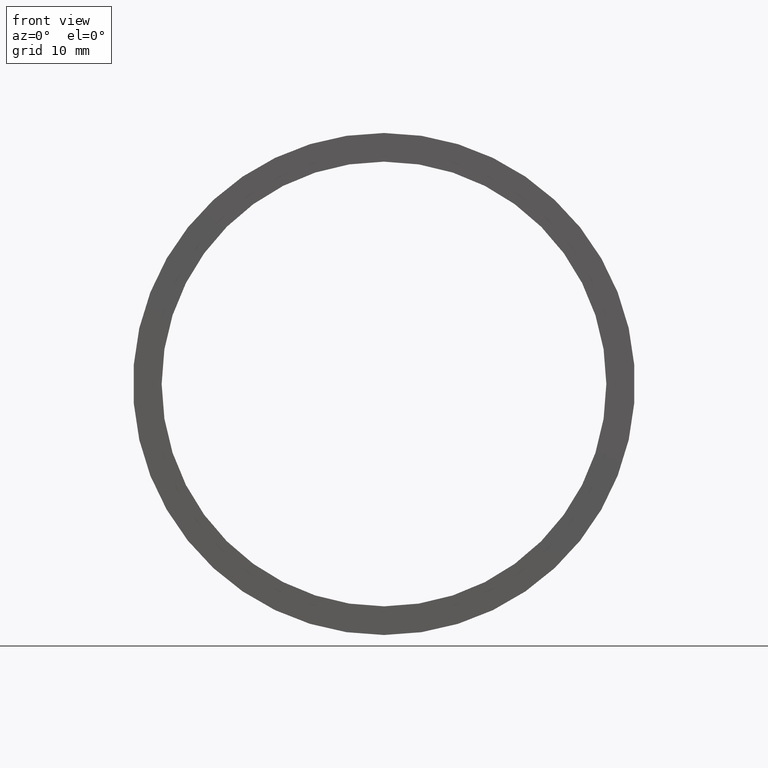
[diagram: clean part render]
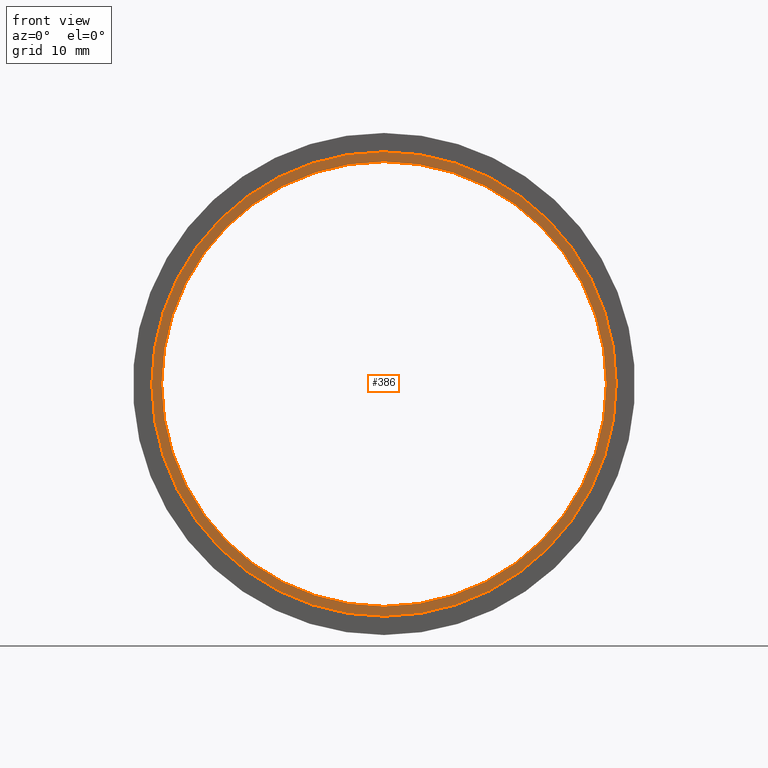
[diagram: same view with one face highlighted and labeled with its STEP entity id]
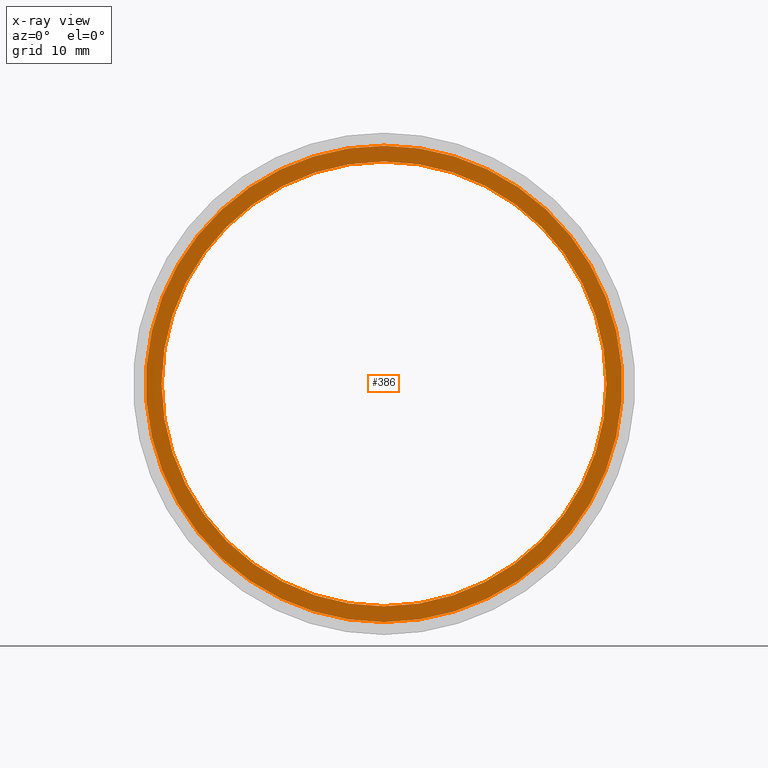
[diagram: x-ray of the same camera — body ghosted, the highlighted face saturated]
A machine part, front view. The second image highlights one B-rep face of the part: STEP entity #386.
The next image is the same camera in x-ray: the body ghosted, the highlighted face saturated — about 0% of this face is hidden behind the body in this view.
In plain terms, the highlighted planar face has unit normal (-0, 1, 0).
Its self-contained STEP definition (entity closure, byte-faithful):
#7 = DIRECTION ( 'NONE',  ( 0.0000000000000000000, 0.0000000000000000000, 1.000000000000000000 ) ) ;
#27 = DIRECTION ( 'NONE',  ( -0.0000000000000000000, 1.000000000000000000, 0.0000000000000000000 ) ) ;
#45 = EDGE_CURVE ( 'NONE', #153, #569, #543, .T. ) ;
#48 = EDGE_LOOP ( 'NONE', ( #181, #96 ) ) ;
#50 = AXIS2_PLACEMENT_3D ( 'NONE', #325, #27, #369 ) ;
#79 = ORIENTED_EDGE ( 'NONE', *, *, #45, .T. ) ;
#85 = CARTESIAN_POINT ( 'NONE',  ( 0.0000000000000000000, 5.499999999999976900, 0.0000000000000000000 ) ) ;
#92 = CIRCLE ( 'NONE', #158, 22.50000000000001800 ) ;
#96 = ORIENTED_EDGE ( 'NONE', *, *, #304, .F. ) ;
#138 = DIRECTION ( 'NONE',  ( 0.0000000000000000000, 0.0000000000000000000, 1.000000000000000000 ) ) ;
#153 = VERTEX_POINT ( 'NONE', #550 ) ;
#158 = AXIS2_PLACEMENT_3D ( 'NONE', #177, #561, #551 ) ;
#166 = CARTESIAN_POINT ( 'NONE',  ( 0.0000000000000000000, 5.499999999999976900, 22.50000000000001800 ) ) ;
#177 = CARTESIAN_POINT ( 'NONE',  ( 0.0000000000000000000, 5.499999999999976900, 0.0000000000000000000 ) ) ;
#181 = ORIENTED_EDGE ( 'NONE', *, *, #557, .F. ) ;
#188 = VERTEX_POINT ( 'NONE', #464 ) ;
#203 = ORIENTED_EDGE ( 'NONE', *, *, #244, .T. ) ;
#218 = AXIS2_PLACEMENT_3D ( 'NONE', #85, #431, #138 ) ;
#231 = CARTESIAN_POINT ( 'NONE',  ( 0.0000000000000000000, 5.499999999999976900, 24.10000000000001900 ) ) ;
#244 = EDGE_CURVE ( 'NONE', #569, #153, #92, .T. ) ;
#297 = CIRCLE ( 'NONE', #584, 24.10000000000001900 ) ;
#304 = EDGE_CURVE ( 'NONE', #188, #606, #406, .T. ) ;
#321 = PLANE ( 'NONE',  #50 ) ;
#325 = CARTESIAN_POINT ( 'NONE',  ( 22.50000000000001800, 5.499999999999984900, 0.0000000000000000000 ) ) ;
#334 = EDGE_LOOP ( 'NONE', ( #203, #79 ) ) ;
#369 = DIRECTION ( 'NONE',  ( 0.0000000000000000000, 0.0000000000000000000, 1.000000000000000000 ) ) ;
#386 = ADVANCED_FACE ( 'NONE', ( #445, #443 ), #321, .F. ) ;
#400 = CARTESIAN_POINT ( 'NONE',  ( 0.0000000000000000000, 5.499999999999976900, 0.0000000000000000000 ) ) ;
#406 = CIRCLE ( 'NONE', #218, 24.10000000000001900 ) ;
#409 = DIRECTION ( 'NONE',  ( 0.0000000000000000000, 0.0000000000000000000, 1.000000000000000000 ) ) ;
#431 = DIRECTION ( 'NONE',  ( -0.0000000000000000000, 1.000000000000000000, -0.0000000000000000000 ) ) ;
#443 = FACE_BOUND ( 'NONE', #334, .T. ) ;
#445 = FACE_OUTER_BOUND ( 'NONE', #48, .T. ) ;
#464 = CARTESIAN_POINT ( 'NONE',  ( 2.951398785945123600E-015, 5.499999999999976900, -24.10000000000001900 ) ) ;
#492 = DIRECTION ( 'NONE',  ( -0.0000000000000000000, 1.000000000000000000, -0.0000000000000000000 ) ) ;
#499 = DIRECTION ( 'NONE',  ( -0.0000000000000000000, 1.000000000000000000, -0.0000000000000000000 ) ) ;
#543 = CIRCLE ( 'NONE', #617, 22.50000000000001800 ) ;
#545 = CARTESIAN_POINT ( 'NONE',  ( 0.0000000000000000000, 5.499999999999976900, 0.0000000000000000000 ) ) ;
#550 = CARTESIAN_POINT ( 'NONE',  ( 2.755455298081546700E-015, 5.499999999999976900, -22.50000000000001800 ) ) ;
#551 = DIRECTION ( 'NONE',  ( 0.0000000000000000000, 0.0000000000000000000, 1.000000000000000000 ) ) ;
#557 = EDGE_CURVE ( 'NONE', #606, #188, #297, .T. ) ;
#561 = DIRECTION ( 'NONE',  ( -0.0000000000000000000, 1.000000000000000000, -0.0000000000000000000 ) ) ;
#569 = VERTEX_POINT ( 'NONE', #166 ) ;
#584 = AXIS2_PLACEMENT_3D ( 'NONE', #545, #499, #409 ) ;
#606 = VERTEX_POINT ( 'NONE', #231 ) ;
#617 = AXIS2_PLACEMENT_3D ( 'NONE', #400, #492, #7 ) ;